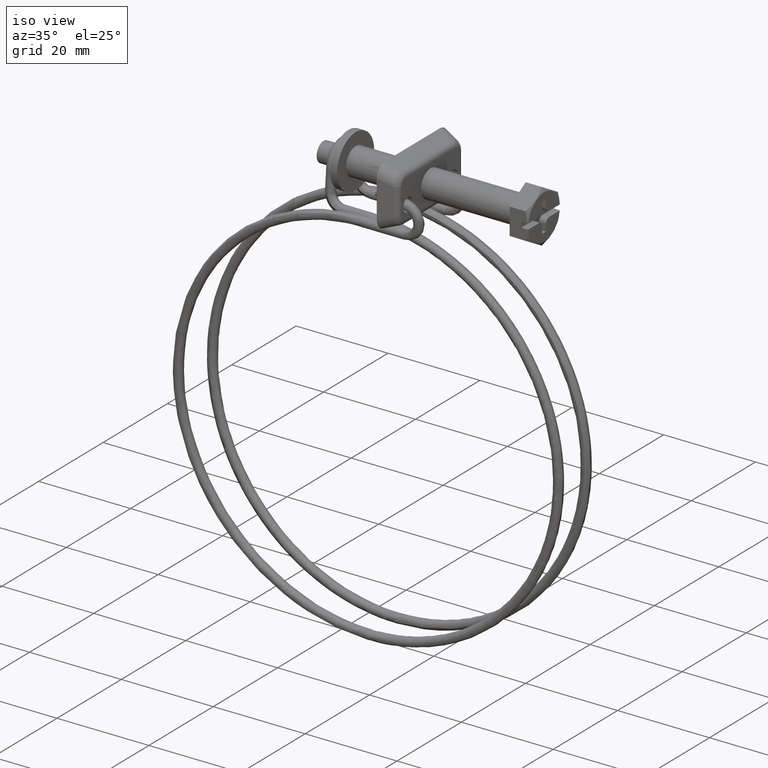
[diagram: clean part render]
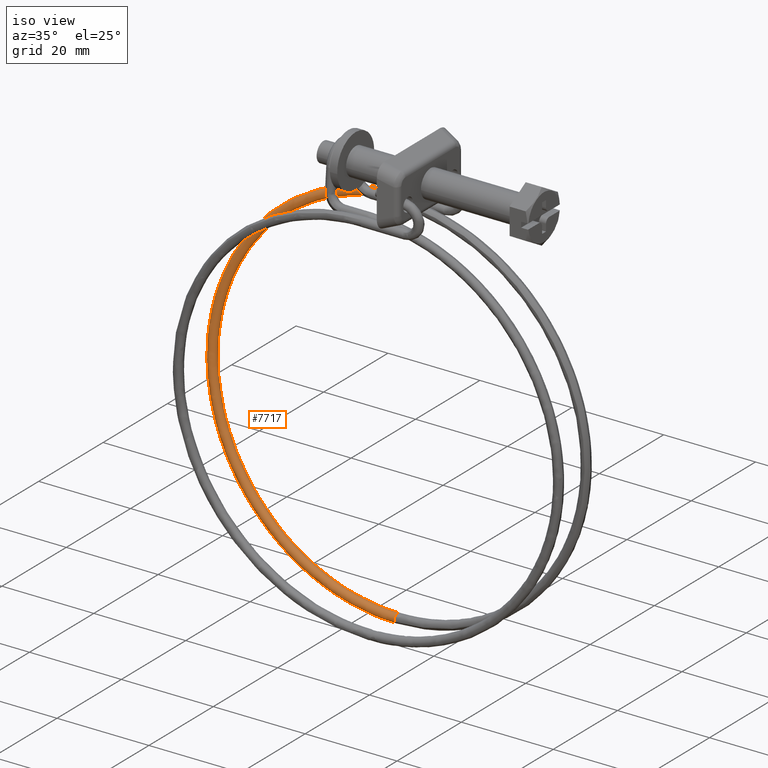
[diagram: same view with one face highlighted and labeled with its STEP entity id]
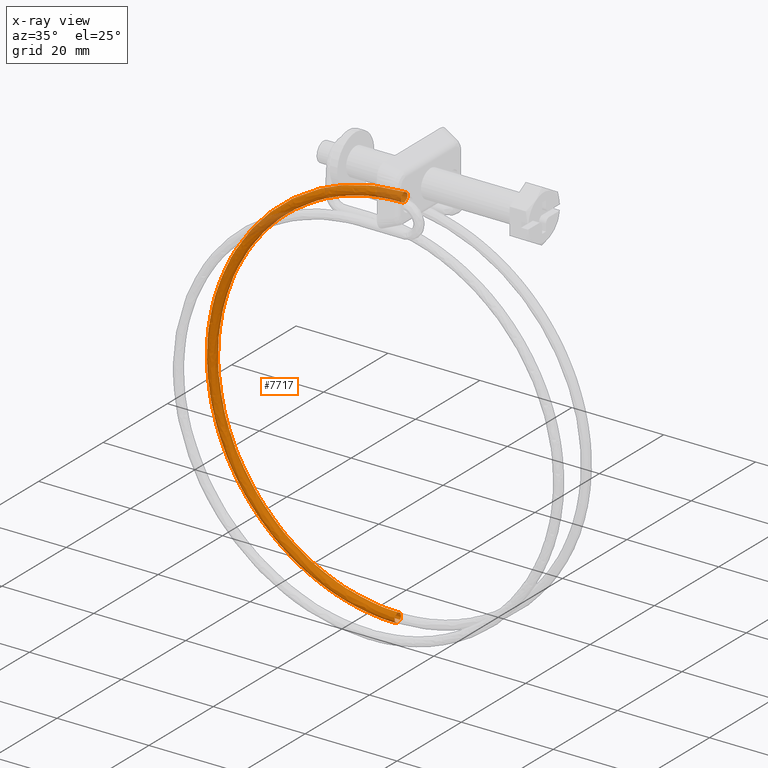
[diagram: x-ray of the same camera — body ghosted, the highlighted face saturated]
A machine part, iso view. The second image highlights one B-rep face of the part: STEP entity #7717.
The next image is the same camera in x-ray: the body ghosted, the highlighted face saturated — about 10% of this face is hidden behind the body in this view.
In plain terms, the highlighted face is a freeform B-spline surface patch.
Its self-contained STEP definition (entity closure, byte-faithful):
#5726=CARTESIAN_POINT('',(-30.850000000000911,6.004820437301616,-6.898214138594648));
#5727=VERTEX_POINT('',#5726);
#5728=CARTESIAN_POINT('',(-30.850000000000929,6.358996856596280,-6.851201973787996));
#5729=VERTEX_POINT('',#5728);
#5730=CARTESIAN_POINT('',(-30.850000000000911,6.004820437301616,-6.898214138594648));
#5731=CARTESIAN_POINT('',(-30.850000000000922,6.118867995594495,-6.861704642742452));
#5732=CARTESIAN_POINT('',(-30.850000000000929,6.239317306544906,-6.845181952244658));
#5733=CARTESIAN_POINT('',(-30.850000000000929,6.358996856596280,-6.851201973787996));
#5734=B_SPLINE_CURVE_WITH_KNOTS('',3,(#5730,#5731,#5732,#5733),.UNSPECIFIED.,.F.,.U.,(4,4),(0.942811831421303,1.0),.UNSPECIFIED.);
#5735=EDGE_CURVE('',#5727,#5729,#5734,.T.);
#5788=CARTESIAN_POINT('',(-30.849999999434960,5.310113702049540,-7.862072869064420));
#5789=VERTEX_POINT('',#5788);
#5795=CARTESIAN_POINT('',(-30.850000000000900,6.261006954303622,-8.848800026212214));
#5796=VERTEX_POINT('',#5795);
#5797=CARTESIAN_POINT('',(-30.850000000000900,6.261006954303622,-8.848800026212214));
#5798=CARTESIAN_POINT('',(-30.849999999922151,5.999516564921013,-8.835973256122980));
#5799=CARTESIAN_POINT('',(-30.849999999813381,5.744914629749102,-8.715581837668982));
#5800=CARTESIAN_POINT('',(-30.849999999605650,5.406925013788081,-8.342738291903570));
#5801=CARTESIAN_POINT('',(-30.849999999507698,5.313598870455792,-8.103321590939991));
#5802=CARTESIAN_POINT('',(-30.849999999434960,5.310113702049540,-7.862072869064420));
#5803=B_SPLINE_CURVE_WITH_KNOTS('',3,(#5797,#5798,#5799,#5800,#5801,#5802),.UNSPECIFIED.,.F.,.U.,(4,2,4),(0.500000000000000,0.625000000000000,0.740274319493434),.UNSPECIFIED.);
#5804=EDGE_CURVE('',#5796,#5789,#5803,.T.);
#5806=CARTESIAN_POINT('',(-30.850000000000929,7.071613916305710,-7.202001879863099));
#5807=VERTEX_POINT('',#5806);
#5808=CARTESIAN_POINT('',(-30.850000000000929,7.071613916305710,-7.202001879863099));
#5809=CARTESIAN_POINT('',(-30.850000000000911,7.234151736769861,-7.393563702140808));
#5810=CARTESIAN_POINT('',(-30.850000000000922,7.321114674079419,-7.647971026174180));
#5811=CARTESIAN_POINT('',(-30.850000000000911,7.295974083446659,-8.160480924743180));
#5812=CARTESIAN_POINT('',(-30.850000000000900,7.175582557090495,-8.415075380022401));
#5813=CARTESIAN_POINT('',(-30.850000000000911,6.787647058364607,-8.766731073330977));
#5814=CARTESIAN_POINT('',(-30.850000000000900,6.522491927900330,-8.861626874427570));
#5815=CARTESIAN_POINT('',(-30.850000000000900,6.261006954303626,-8.848800026212214));
#5816=B_SPLINE_CURVE_WITH_KNOTS('',3,(#5808,#5809,#5810,#5811,#5812,#5813,#5814,#5815),.UNSPECIFIED.,.F.,.U.,(4,2,2,4),(0.130000310572599,0.249999999999999,0.374999999999999,0.500000000000000),.UNSPECIFIED.);
#5817=EDGE_CURVE('',#5807,#5796,#5816,.T.);
#5849=CARTESIAN_POINT('',(-30.849999999434960,5.310113702049540,-7.862072869064420));
#5850=CARTESIAN_POINT('',(-30.849999999442741,5.309818581823587,-7.841712403682659));
#5851=CARTESIAN_POINT('',(-30.849999999450709,5.310162926879841,-7.821338748521689));
#5852=CARTESIAN_POINT('',(-30.849999999563479,5.323966057059225,-7.539417066603664));
#5853=CARTESIAN_POINT('',(-30.849999999695420,5.444332173754694,-7.284715254383526));
#5854=CARTESIAN_POINT('',(-30.849999999883622,5.743490145983325,-7.013348610112122));
#5855=CARTESIAN_POINT('',(-30.849999999946441,5.869654991837565,-6.941730163042696));
#5856=CARTESIAN_POINT('',(-30.850000000000911,6.004820437301616,-6.898214138594648));
#5857=B_SPLINE_CURVE_WITH_KNOTS('',3,(#5849,#5850,#5851,#5852,#5853,#5854,#5855,#5856),.UNSPECIFIED.,.F.,.U.,(4,2,2,4),(0.740274319493434,0.750000000000000,0.875000000000000,0.942811831421303),.UNSPECIFIED.);
#5858=EDGE_CURVE('',#5789,#5727,#5857,.T.);
#6677=CARTESIAN_POINT('',(-30.850012773898129,4.300002000002066,-90.850000999996155));
#6678=VERTEX_POINT('',#6677);
#6694=CARTESIAN_POINT('',(-30.849999999999049,5.028950649561814,-90.534537033441850));
#6695=VERTEX_POINT('',#6694);
#6705=CARTESIAN_POINT('',(-30.849999999999049,4.300002000002067,-88.850000999999992));
#6706=VERTEX_POINT('',#6705);
#6707=CARTESIAN_POINT('',(-30.849999999999049,5.028950649561814,-90.534537033441850));
#6708=CARTESIAN_POINT('',(-30.849999999999049,5.200678828488588,-90.351168804465871));
#6709=CARTESIAN_POINT('',(-30.849999999999049,5.300002000002070,-90.101327761825345));
#6710=CARTESIAN_POINT('',(-30.849999999999049,5.300002000002070,-89.588201612200891));
#6711=CARTESIAN_POINT('',(-30.849999999999049,5.192228903611880,-89.328014341236795));
#6712=CARTESIAN_POINT('',(-30.849999999999049,4.821988658765351,-88.957774096390210));
#6713=CARTESIAN_POINT('',(-30.849999999999049,4.561801387801220,-88.850000999999992));
#6714=CARTESIAN_POINT('',(-30.849999999999049,4.300002000002067,-88.850000999999992));
#6715=B_SPLINE_CURVE_WITH_KNOTS('',3,(#6707,#6708,#6709,#6710,#6711,#6712,#6713,#6714),.UNSPECIFIED.,.F.,.U.,(4,2,2,4),(0.130000310572678,0.250000000000000,0.375000000000000,0.500000000000000),.UNSPECIFIED.);
#6716=EDGE_CURVE('',#6695,#6706,#6715,.T.);
#6718=CARTESIAN_POINT('',(-30.849999999864480,3.364945210154583,-90.203131635906203));
#6719=VERTEX_POINT('',#6718);
#6720=CARTESIAN_POINT('',(-30.849999999999049,4.300002000002067,-88.850000999999992));
#6721=CARTESIAN_POINT('',(-30.849999999986871,4.038161661961732,-88.850016503426176));
#6722=CARTESIAN_POINT('',(-30.849999999967519,3.777909289248898,-88.957814246805668));
#6723=CARTESIAN_POINT('',(-30.849999999925359,3.407527296421545,-89.328108156277750));
#6724=CARTESIAN_POINT('',(-30.849999999902831,3.299678426659591,-89.588324114420274));
#6725=CARTESIAN_POINT('',(-30.849999999877092,3.299591888974549,-89.970530271639163));
#6726=CARTESIAN_POINT('',(-30.849999999870072,3.322352722698206,-90.090572399677228));
#6727=CARTESIAN_POINT('',(-30.849999999864480,3.364945210154583,-90.203131635906203));
#6728=B_SPLINE_CURVE_WITH_KNOTS('',3,(#6720,#6721,#6722,#6723,#6724,#6725,#6726,#6727),.UNSPECIFIED.,.F.,.U.,(4,2,2,4),(0.500000000000000,0.625000000000000,0.750000000000000,0.807474354682574),.UNSPECIFIED.);
#6729=EDGE_CURVE('',#6706,#6719,#6728,.T.);
#6784=CARTESIAN_POINT('',(-30.849999999864480,3.364945210154583,-90.203131635906203));
#6785=CARTESIAN_POINT('',(-30.850001308274908,3.415054867137733,-90.335349654655047));
#6786=CARTESIAN_POINT('',(-30.850002803495130,3.492539150086655,-90.457238662664196));
#6787=CARTESIAN_POINT('',(-30.850007261673230,3.777820058852113,-90.742301835921040));
#6788=CARTESIAN_POINT('',(-30.850010355027781,4.038116918534050,-90.850033442918615));
#6789=CARTESIAN_POINT('',(-30.850012773898129,4.300002000002066,-90.850000999996155));
#6790=B_SPLINE_CURVE_WITH_KNOTS('',3,(#6784,#6785,#6786,#6787,#6788,#6789),.UNSPECIFIED.,.F.,.U.,(4,2,4),(0.807474354682575,0.875000000000000,1.0),.UNSPECIFIED.);
#6791=EDGE_CURVE('',#6719,#6678,#6790,.T.);
#7377=CARTESIAN_POINT('',(-30.850000000000950,7.071613285309010,-7.202001136190101));
#7378=CARTESIAN_POINT('',(-30.850000000000950,7.234151286631649,-7.393562385268178));
#7379=CARTESIAN_POINT('',(-30.850000000000950,7.321114705951755,-7.647970376489860));
#7380=CARTESIAN_POINT('',(-30.850000000000950,7.295974083451569,-8.160480924739490));
#7381=CARTESIAN_POINT('',(-30.850000000000950,7.175582557096370,-8.415075380019149));
#7382=CARTESIAN_POINT('',(-30.850000000000950,6.787647058371790,-8.766731073329181));
#7383=CARTESIAN_POINT('',(-30.850000000000950,6.522491927907869,-8.861626874426781));
#7384=CARTESIAN_POINT('',(-30.850000000000950,5.999521980714371,-8.835973177998030));
#7385=CARTESIAN_POINT('',(-30.850000000000950,5.744927525434690,-8.715581651642809));
#7386=CARTESIAN_POINT('',(-30.850000000000950,5.393271832124660,-8.327646152918240));
#7387=CARTESIAN_POINT('',(-30.850000000000950,5.298376031027081,-8.062491022454319));
#7388=CARTESIAN_POINT('',(-30.850000000000950,5.324029727455830,-7.539521075260820));
#7389=CARTESIAN_POINT('',(-30.850000000000950,5.444421253811041,-7.284926619981150));
#7390=CARTESIAN_POINT('',(-30.850000000000950,5.832356752535610,-6.933270926671121));
#7391=CARTESIAN_POINT('',(-30.850000000000950,6.097511882999530,-6.838375125573530));
#7392=CARTESIAN_POINT('',(-30.850000000000950,6.358996856596286,-6.851201973787906));
#7393=CARTESIAN_POINT('',(-36.305318865713353,7.071801956482028,-7.202034668699312));
#7394=CARTESIAN_POINT('',(-36.280759766241658,7.234339540118801,-7.393595691949216));
#7395=CARTESIAN_POINT('',(-36.247729722232513,7.321302393485189,-7.648003380179147));
#7396=CARTESIAN_POINT('',(-36.180547038057462,7.296160609013390,-8.160513314088711));
#7397=CARTESIAN_POINT('',(-36.146827109476753,7.175768493765270,-8.415107462039599));
#7398=CARTESIAN_POINT('',(-36.099540505776652,6.787832162804280,-8.766762725463700));
#7399=CARTESIAN_POINT('',(-36.086265013652202,6.522676797336060,-8.861658406070150));
#7400=CARTESIAN_POINT('',(-36.087945416752099,5.999706879921960,-8.836004724843820));
#7401=CARTESIAN_POINT('',(-36.102890964337753,5.745112689080730,-8.715613334178409));
#7402=CARTESIAN_POINT('',(-36.152554016909697,5.393457869073910,-8.327678287076051));
#7403=CARTESIAN_POINT('',(-36.186965705122297,5.298562668259230,-8.062523470432069));
#7404=CARTESIAN_POINT('',(-36.255519464484387,5.324217548924910,-7.539554150366399));
#7405=CARTESIAN_POINT('',(-36.289239393035253,5.444609652173801,-7.284960004496850));
#7406=CARTESIAN_POINT('',(-36.336525996772700,5.832545953741991,-6.933304746242730));
#7407=CARTESIAN_POINT('',(-36.349801488881603,6.097701308324460,-6.838409067449040));
#7408=CARTESIAN_POINT('',(-36.348961287324812,6.359186267752410,-6.851235907937705));
#7409=CARTESIAN_POINT('',(-41.756597362526271,7.045027983379254,-8.286578513232945));
#7410=CARTESIAN_POINT('',(-41.707497660433937,7.207685674938065,-8.473256876935631));
#7411=CARTESIAN_POINT('',(-41.641462449132597,7.294810068150722,-8.721097773988895));
#7412=CARTESIAN_POINT('',(-41.507147679818907,7.269996864470141,-9.220250937255779));
#7413=CARTESIAN_POINT('',(-41.439733219027502,7.149769674200730,-9.468141134295658));
#7414=CARTESIAN_POINT('',(-41.345195625843502,6.762064629567949,-9.810395217999620));
#7415=CARTESIAN_POINT('',(-41.318654640136202,6.496974198006770,-9.902651561292020));
#7416=CARTESIAN_POINT('',(-41.322014180748802,5.973996061263240,-9.877331965713559));
#7417=CARTESIAN_POINT('',(-41.351894019576200,5.719328767970500,-9.759911940616199));
#7418=CARTESIAN_POINT('',(-41.451182720633852,5.367431038809690,-9.381850541442590));
#7419=CARTESIAN_POINT('',(-41.519980179656848,5.272367530294030,-9.123537206148251));
#7420=CARTESIAN_POINT('',(-41.657036066711662,5.297687125881801,-8.614197243631020));
#7421=CARTESIAN_POINT('',(-41.724450527540313,5.417914316153540,-8.366307046628400));
#7422=CARTESIAN_POINT('',(-41.818988120668401,5.805619360790970,-8.024052962924419));
#7423=CARTESIAN_POINT('',(-41.845529106394302,6.070709792352150,-7.931796619594779));
#7424=CARTESIAN_POINT('',(-41.843849336097328,6.332198860721585,-7.944456417384010));
#7425=CARTESIAN_POINT('',(-51.834657833174738,6.942698855846945,-12.461199687284800));
#7426=CARTESIAN_POINT('',(-51.740194108261562,7.105817157948212,-12.629086974020041));
#7427=CARTESIAN_POINT('',(-51.613147878563538,7.193561035860643,-12.851655360553410));
#7428=CARTESIAN_POINT('',(-51.354737483467808,7.170007856090960,-13.299404562928720));
#7429=CARTESIAN_POINT('',(-51.225037692908913,7.050413089436760,-13.521494393125259));
#7430=CARTESIAN_POINT('',(-51.043155261550012,6.663594913958450,-13.827567744266220));
#7431=CARTESIAN_POINT('',(-50.992092622335001,6.398753466755650,-13.909666516693900));
#7432=CARTESIAN_POINT('',(-50.998556097785603,5.875743813745460,-13.885632659772099));
#7433=CARTESIAN_POINT('',(-51.056042411454001,5.620796213879930,-13.779648026953501));
#7434=CARTESIAN_POINT('',(-51.247065577479098,5.267967044805459,-13.439585669406400));
#7435=CARTESIAN_POINT('',(-51.379426141130402,5.172258138593370,-13.207601991858599));
#7436=CARTESIAN_POINT('',(-51.643110217758803,5.196291995505860,-12.750715050659300));
#7437=CARTESIAN_POINT('',(-51.772810008280402,5.315886762157740,-12.528625220425541));
#7438=CARTESIAN_POINT('',(-51.954692439695201,5.702704937631390,-12.222551869284580));
#7439=CARTESIAN_POINT('',(-52.005755078891497,5.967546384834200,-12.140453096894120));
#7440=CARTESIAN_POINT('',(-52.002523341156902,6.229051211341620,-12.152470025355029));
#7441=CARTESIAN_POINT('',(-56.456585399208073,6.866995429185042,-15.549598225404299));
#7442=CARTESIAN_POINT('',(-56.341320301887457,7.030454462742127,-15.703585024638301));
#7443=CARTESIAN_POINT('',(-56.186297873547979,7.118656597487063,-15.907458356234340));
#7444=CARTESIAN_POINT('',(-55.870984250603797,7.096035506200931,-16.317182057654101));
#7445=CARTESIAN_POINT('',(-55.712723934325602,6.976908567793000,-16.520186357239151));
#7446=CARTESIAN_POINT('',(-55.490790105538302,6.590746443789440,-16.799495419098601));
#7447=CARTESIAN_POINT('',(-55.428483224460606,6.326089179964520,-16.874080242874399));
#7448=CARTESIAN_POINT('',(-55.436369988731393,5.803056213137150,-16.850997496626800));
#7449=CARTESIAN_POINT('',(-55.506515068650501,5.547901259653260,-16.753472066396149));
#7450=CARTESIAN_POINT('',(-55.739602466377796,5.194383068402150,-16.441519071791252));
#7451=CARTESIAN_POINT('',(-55.901109470921199,5.098196736511929,-16.229012461839549));
#7452=CARTESIAN_POINT('',(-56.222858065762203,5.121279482719940,-15.810927052227550));
#7453=CARTESIAN_POINT('',(-56.381118382040299,5.240406421130190,-15.607922752642500));
#7454=CARTESIAN_POINT('',(-56.603052210790402,5.626568545129100,-15.328613690820299));
#7455=CARTESIAN_POINT('',(-56.665359091905302,5.891225808958680,-15.254028866970000));
#7456=CARTESIAN_POINT('',(-56.661415709769912,6.152742292371200,-15.265570240093799));
#7457=CARTESIAN_POINT('',(-64.169706932447482,6.677924333817932,-23.262946489099551));
#7458=CARTESIAN_POINT('',(-64.019733912137127,6.842234159755088,-23.382224345082161));
#7459=CARTESIAN_POINT('',(-63.818032075610972,6.931580542873616,-23.539416896462800));
#7460=CARTESIAN_POINT('',(-63.407773137861888,6.911286838057980,-23.854192492014299));
#7461=CARTESIAN_POINT('',(-63.201858440510897,6.793328047460080,-24.009541009718550));
#7462=CARTESIAN_POINT('',(-62.913097250974097,6.408804056904301,-24.222020746345301));
#7463=CARTESIAN_POINT('',(-62.832028901848112,6.144606691345130,-24.277843550614151));
#7464=CARTESIAN_POINT('',(-62.842290480399697,5.621515510897161,-24.257135688594602));
#7465=CARTESIAN_POINT('',(-62.933557219047501,5.365842803988100,-24.180732537753698));
#7466=CARTESIAN_POINT('',(-63.236830472198399,5.010604152795780,-23.938967461756501));
#7467=CARTESIAN_POINT('',(-63.446969480803197,4.913225708707060,-23.775094285427802));
#7468=CARTESIAN_POINT('',(-63.865601049934902,4.933933570766151,-23.453894698130352));
#7469=CARTESIAN_POINT('',(-64.071515747285900,5.051892361361730,-23.298546180426150));
#7470=CARTESIAN_POINT('',(-64.360276936859904,5.436416351922160,-23.086066443762149));
#7471=CARTESIAN_POINT('',(-64.441345285948600,5.700613717476680,-23.030243639567750));
#7472=CARTESIAN_POINT('',(-64.436214496672804,5.962159307701830,-23.040597570577528));
#7473=CARTESIAN_POINT('',(-67.257870811315755,6.564631052096206,-27.884861520722911));
#7474=CARTESIAN_POINT('',(-67.094004646809807,6.729450598643297,-27.983344804258000));
#7475=CARTESIAN_POINT('',(-66.873617631611211,6.819482515630091,-28.112570302378600));
#7476=CARTESIAN_POINT('',(-66.425353280950901,6.800583177846730,-28.370461271795349));
#7477=CARTESIAN_POINT('',(-66.200363135448896,6.683324239566770,-28.497258600213250));
#7478=CARTESIAN_POINT('',(-65.884851795651699,6.299781675729149,-28.669700032240900));
#7479=CARTESIAN_POINT('',(-65.796273467359597,6.035859841118090,-28.714282270378799));
#7480=CARTESIAN_POINT('',(-65.807485654204200,5.512733784144930,-28.694997231810401));
#7481=CARTESIAN_POINT('',(-65.907207126505895,5.256750884521581,-28.631248709162250));
#7482=CARTESIAN_POINT('',(-66.238574893017002,4.900481483754490,-28.431534114064050));
#7483=CARTESIAN_POINT('',(-66.468180679900897,4.802388829977799,-28.296797850716651));
#7484=CARTESIAN_POINT('',(-66.925593282615495,4.821673868529930,-28.033643800254151));
#7485=CARTESIAN_POINT('',(-67.150583428154704,4.938932806809881,-27.906846471817651));
#7486=CARTESIAN_POINT('',(-67.466094768026409,5.322475370645170,-27.734405039808550));
#7487=CARTESIAN_POINT('',(-67.554673096318496,5.586397205249249,-27.689822801707951));
#7488=CARTESIAN_POINT('',(-67.549067002896209,5.847960233739325,-27.699465320973552));
#7489=CARTESIAN_POINT('',(-71.432071037498559,6.317605177178955,-37.962534153166203));
#7490=CARTESIAN_POINT('',(-71.249427466345963,6.483535955836153,-38.015683588924688));
#7491=CARTESIAN_POINT('',(-71.003786326068365,6.575062392000216,-38.083938651603532));
#7492=CARTESIAN_POINT('',(-70.504155410194215,6.559202887016050,-38.217816540569501));
#7493=CARTESIAN_POINT('',(-70.253383667347791,6.443469683310351,-38.282369969864547));
#7494=CARTESIAN_POINT('',(-69.901717915925389,6.062066709014920,-38.367524663339907));
#7495=CARTESIAN_POINT('',(-69.802989406265297,5.798745554138670,-38.387601559143263));
#7496=CARTESIAN_POINT('',(-69.815486396405603,5.275543463512930,-38.371418390806006));
#7497=CARTESIAN_POINT('',(-69.926634941895102,5.018884318722829,-38.335257979892148));
#7498=CARTESIAN_POINT('',(-70.295974106248195,4.660367800595889,-38.227216830248302));
#7499=CARTESIAN_POINT('',(-70.551890396374702,4.560718112007740,-38.156001390808846));
#7500=CARTESIAN_POINT('',(-71.061717861552395,4.576901280361250,-38.019391300064548));
#7501=CARTESIAN_POINT('',(-71.312489604361502,4.692634484066950,-37.954837870788097));
#7502=CARTESIAN_POINT('',(-71.664155355709397,5.074037458364710,-37.869683177294149));
#7503=CARTESIAN_POINT('',(-71.762883865369503,5.337358613247949,-37.849606281453553));
#7504=CARTESIAN_POINT('',(-71.756635370299350,5.598959658557325,-37.857697865640802));
#7505=CARTESIAN_POINT('',(-72.516468437387104,6.183969693214862,-43.414330082802287));
#7506=CARTESIAN_POINT('',(-72.328947678711643,6.350501549558695,-43.442957940961897));
#7507=CARTESIAN_POINT('',(-72.076747107455105,6.442836387618016,-43.478233423540182));
#7508=CARTESIAN_POINT('',(-71.563774393463092,6.428621161665360,-43.545031271342602));
#7509=CARTESIAN_POINT('',(-71.306306215599605,6.313713244608101,-43.575916290005154));
#7510=CARTESIAN_POINT('',(-70.945249825427396,5.933467597861750,-43.613856625178613));
#7511=CARTESIAN_POINT('',(-70.843884937970103,5.670471357262341,-43.620678311422949));
#7512=CARTESIAN_POINT('',(-70.856715639096905,5.147228139200060,-43.606172978834500));
#7513=CARTESIAN_POINT('',(-70.970832218369807,4.890203205949400,-43.584935281377099));
#7514=CARTESIAN_POINT('',(-71.350033960090286,4.530471197294441,-43.526481308128560));
#7515=CARTESIAN_POINT('',(-71.612784061646991,4.429979291426950,-43.489624982100963));
#7516=CARTESIAN_POINT('',(-72.136225606536811,4.444484624029375,-43.421463912933397));
#7517=CARTESIAN_POINT('',(-72.393693784400298,4.559392541091291,-43.390578894252208));
#7518=CARTESIAN_POINT('',(-72.754750174572507,4.939638187837640,-43.352638559078798));
#7519=CARTESIAN_POINT('',(-72.856115062029801,5.202634428439381,-43.345816872815803));
#7520=CARTESIAN_POINT('',(-72.849699711466400,5.464256037469355,-43.353069539119353));
#7521=CARTESIAN_POINT('',(-72.516468437387104,5.916593645016190,-54.322208798694582));
#7522=CARTESIAN_POINT('',(-72.328947678711643,6.084328121477913,-54.301774542007500));
#7523=CARTESIAN_POINT('',(-72.076747107455105,6.178280388371900,-54.271065365238883));
#7524=CARTESIAN_POINT('',(-71.563774393463092,6.167354991824380,-54.203651265599703));
#7525=CARTESIAN_POINT('',(-71.306306215599605,6.054098286136230,-54.167173431252699));
#7526=CARTESIAN_POINT('',(-70.945249825427396,5.676168189311480,-54.110648544542798));
#7527=CARTESIAN_POINT('',(-70.843884937970103,5.413822028482841,-54.090949563005800));
#7528=CARTESIAN_POINT('',(-70.856715639096905,4.890496523753310,-54.079801199165502));
#7529=CARTESIAN_POINT('',(-70.970832218369807,4.632739730760170,-54.088420466657901));
#7530=CARTESIAN_POINT('',(-71.350033960090286,4.270575801258575,-54.129179186028402));
#7531=CARTESIAN_POINT('',(-71.612784061646991,4.168398809638284,-54.161067652556213));
#7532=CARTESIAN_POINT('',(-72.136225606536811,4.179547173464609,-54.229857550128600));
#7533=CARTESIAN_POINT('',(-72.393693784400298,4.292803879148100,-54.266335384494212));
#7534=CARTESIAN_POINT('',(-72.754750174572507,4.670733975972850,-54.322860271204100));
#7535=CARTESIAN_POINT('',(-72.856115062029801,4.933080136799160,-54.342559252759699));
#7536=CARTESIAN_POINT('',(-72.849699711466400,5.194742889165090,-54.348133434670558));
#7537=CARTESIAN_POINT('',(-71.432071037457206,5.782958161061376,-59.774004728223943));
#7538=CARTESIAN_POINT('',(-71.249427466285354,5.951293715210081,-59.729048893945070));
#7539=CARTESIAN_POINT('',(-71.003786325973138,6.046054383990868,-59.665360137059999));
#7540=CARTESIAN_POINT('',(-70.504155410098903,6.036773266481680,-59.530865996312599));
#7541=CARTESIAN_POINT('',(-70.253383667252393,5.924341847437330,-59.460719751314798));
#7542=CARTESIAN_POINT('',(-69.901717915867096,5.547569078163971,-59.356980506284600));
#7543=CARTESIAN_POINT('',(-69.802989406206891,5.285547831614500,-59.324026315188803));
#7544=CARTESIAN_POINT('',(-69.815486396347183,4.762181199446101,-59.314555787115900));
#7545=CARTESIAN_POINT('',(-69.926634941836710,4.504058617994721,-59.338097768027403));
#7546=CARTESIAN_POINT('',(-70.295974106152812,4.140679197962795,-59.428443663867299));
#7547=CARTESIAN_POINT('',(-70.551890396279404,4.037659989063171,-59.494691243769402));
#7548=CARTESIAN_POINT('',(-71.061717861457296,4.047130517136095,-59.631930162899401));
#7549=CARTESIAN_POINT('',(-71.312489604303792,4.159561936180454,-59.702076407859998));
#7550=CARTESIAN_POINT('',(-71.664155355689104,4.536334705453810,-59.805815652890097));
#7551=CARTESIAN_POINT('',(-71.762883865349195,4.798355952000950,-59.838769843985887));
#7552=CARTESIAN_POINT('',(-71.756635370279042,5.060039268085150,-59.843505108041001));
#7553=CARTESIAN_POINT('',(-67.257870811355673,5.535932286125568,-69.851677360880288));
#7554=CARTESIAN_POINT('',(-67.094004646869024,5.705379072383697,-69.761387678810607));
#7555=CARTESIAN_POINT('',(-66.873617631704803,5.801634260358655,-69.636728486515480));
#7556=CARTESIAN_POINT('',(-66.425353281044792,5.795392975635010,-69.378221265206804));
#7557=CARTESIAN_POINT('',(-66.200363135542915,5.684487291174230,-69.245831121122805));
#7558=CARTESIAN_POINT('',(-65.884851795708585,5.309854111438430,-69.054805137576807));
#7559=CARTESIAN_POINT('',(-65.796273467416498,5.048433544619110,-68.997345604146290));
#7560=CARTESIAN_POINT('',(-65.807485654261100,4.524990878802800,-68.990976946267295));
#7561=CARTESIAN_POINT('',(-65.907207126562795,4.266192052180005,-69.042107038987808));
#7562=CARTESIAN_POINT('',(-66.238574893111007,3.900565514792855,-69.224126380133896));
#7563=CARTESIAN_POINT('',(-66.468180679994802,3.795989271081775,-69.353894784019005));
#7564=CARTESIAN_POINT('',(-66.925593282709102,3.802357928960710,-69.617677662905393));
#7565=CARTESIAN_POINT('',(-67.150583428211007,3.913263613421490,-69.750067807026696));
#7566=CARTESIAN_POINT('',(-67.466094768045309,4.287896793157290,-69.941093790572609));
#7567=CARTESIAN_POINT('',(-67.554673096337396,4.549317359978940,-69.998553324003211));
#7568=CARTESIAN_POINT('',(-67.549067002915109,4.811038692887095,-70.001737652924049));
#7569=CARTESIAN_POINT('',(-64.169706932486690,5.422639004422679,-74.473592392392064));
#7570=CARTESIAN_POINT('',(-64.019733912168178,5.592595511290059,-74.362508137884532));
#7571=CARTESIAN_POINT('',(-63.818032075744441,5.689536233124795,-74.209881892346900));
#7572=CARTESIAN_POINT('',(-63.407773137959303,5.684689315437971,-73.894490044921795));
#7573=CARTESIAN_POINT('',(-63.201858440571208,5.574483483292820,-73.733548711570208));
#7574=CARTESIAN_POINT('',(-62.913097250997502,5.200831730279830,-73.502484423406599));
#7575=CARTESIAN_POINT('',(-62.832028901908807,4.939686694401640,-73.433784323807799));
#7576=CARTESIAN_POINT('',(-62.842290480497709,4.416209152060130,-73.428838489435904));
#7577=CARTESIAN_POINT('',(-62.933557219070899,4.157100132730035,-73.492623210237298));
#7578=CARTESIAN_POINT('',(-63.236830472221513,3.790442845762300,-73.716693032394005));
#7579=CARTESIAN_POINT('',(-63.446969480863302,3.685152392365560,-73.875598349260400));
#7580=CARTESIAN_POINT('',(-63.865601050031792,3.690098226735215,-74.197426765000301));
#7581=CARTESIAN_POINT('',(-64.071515747345401,3.800304058885025,-74.358368098277396));
#7582=CARTESIAN_POINT('',(-64.360276936919206,4.173955811896851,-74.589432386440990));
#7583=CARTESIAN_POINT('',(-64.441345286082296,4.435100847770385,-74.658132486039790));
#7584=CARTESIAN_POINT('',(-64.436214496787912,4.696839618941137,-74.660605403225802));
#7585=CARTESIAN_POINT('',(-56.456585399166293,5.233567909036479,-82.186940656096610));
#7586=CARTESIAN_POINT('',(-56.341320301853820,5.404375208285981,-82.041147458332489));
#7587=CARTESIAN_POINT('',(-56.186297873411917,5.502460178494388,-81.841840432512726));
#7588=CARTESIAN_POINT('',(-55.870984250503803,5.499940647282610,-81.431500479293092));
#7589=CARTESIAN_POINT('',(-55.712723934262691,5.390902962942811,-81.222903363986589));
#7590=CARTESIAN_POINT('',(-55.490790105512403,5.018889343372931,-80.925009750590903));
#7591=CARTESIAN_POINT('',(-55.428483224397297,4.758204205779121,-80.837547631559801));
#7592=CARTESIAN_POINT('',(-55.436369988630901,4.234668449812349,-80.834976681341402));
#7593=CARTESIAN_POINT('',(-55.506515068624601,3.975041677047780,-80.919883681681497));
#7594=CARTESIAN_POINT('',(-55.739602466352103,3.606663930145835,-81.214141422370801));
#7595=CARTESIAN_POINT('',(-55.901109470858501,3.500181364545955,-81.421680172785315));
#7596=CARTESIAN_POINT('',(-56.222858065662699,3.502752314766705,-81.840394410764404));
#7597=CARTESIAN_POINT('',(-56.381118381978197,3.611789999101850,-82.048991526145400));
#7598=CARTESIAN_POINT('',(-56.603052210728592,3.983803618672895,-82.346885139541115));
#7599=CARTESIAN_POINT('',(-56.665359091769098,4.244488756271365,-82.434347258572203));
#7600=CARTESIAN_POINT('',(-56.661415709652303,4.506256634254748,-82.435632733681402));
#7601=CARTESIAN_POINT('',(-51.834657833085018,5.157864482388190,-85.275339194193464));
#7602=CARTESIAN_POINT('',(-51.740194108171643,5.329012513093518,-85.115645508933596));
#7603=CARTESIAN_POINT('',(-51.613147878473420,5.427555740134419,-84.897643428244962));
#7604=CARTESIAN_POINT('',(-51.354737483377100,5.425968297406200,-84.449277974069688));
#7605=CARTESIAN_POINT('',(-51.225037692780703,5.317398441312681,-84.221595328114290));
#7606=CARTESIAN_POINT('',(-51.043155261477303,4.946040873212900,-83.896937425474206));
#7607=CARTESIAN_POINT('',(-50.992092622243597,4.685539918989980,-83.801961357753996));
#7608=CARTESIAN_POINT('',(-50.998556097712800,4.161980849215350,-83.800341518246995));
#7609=CARTESIAN_POINT('',(-51.056042411400000,3.902146722828920,-83.893707721175105));
#7610=CARTESIAN_POINT('',(-51.247065577388199,3.533079953747995,-84.216074824769507));
#7611=CARTESIAN_POINT('',(-51.379426141002597,3.426119962473480,-84.443090642891903));
#7612=CARTESIAN_POINT('',(-51.643110217668699,3.427739801990910,-84.900606412458501));
#7613=CARTESIAN_POINT('',(-51.772810008227800,3.536309658083270,-85.128289058339405));
#7614=CARTESIAN_POINT('',(-51.954692439568497,3.907667226180715,-85.452946961053911));
#7615=CARTESIAN_POINT('',(-52.005755078764899,4.168168180409460,-85.547923028736903));
#7616=CARTESIAN_POINT('',(-52.002523341048949,4.429947715296775,-85.548732948490397));
#7617=CARTESIAN_POINT('',(-41.756597362612602,5.055535354847769,-89.449960368280031));
#7618=CARTESIAN_POINT('',(-41.707497660520460,5.227143996093493,-89.271475606047034));
#7619=CARTESIAN_POINT('',(-41.641462449219368,5.326306707834098,-89.028201014768214));
#7620=CARTESIAN_POINT('',(-41.507147679906147,5.325979289012221,-88.528431599627908));
#7621=CARTESIAN_POINT('',(-41.439733219152302,5.218041856538560,-88.274948586977999));
#7622=CARTESIAN_POINT('',(-41.345195625912801,4.847571157607230,-87.914109951700098));
#7623=CARTESIAN_POINT('',(-41.318654640224253,4.587319187738030,-87.808976313115096));
#7624=CARTESIAN_POINT('',(-41.322014180818201,4.063728601682765,-87.808642212264800));
#7625=CARTESIAN_POINT('',(-41.351894019626847,3.803614168739845,-87.913443807322707));
#7626=CARTESIAN_POINT('',(-41.451182720721398,3.433615959742935,-88.273809952692901));
#7627=CARTESIAN_POINT('',(-41.519980179781300,3.326010570769655,-88.527155428413110));
#7628=CARTESIAN_POINT('',(-41.657036066798362,3.326344671609465,-89.037124219372600));
#7629=CARTESIAN_POINT('',(-41.724450527589497,3.434282104084285,-89.290607232097003));
#7630=CARTESIAN_POINT('',(-41.818988120791701,3.804752803017945,-89.651445867300396));
#7631=CARTESIAN_POINT('',(-41.845529106517553,4.065004772881330,-89.756579505922716));
#7632=CARTESIAN_POINT('',(-41.843849336201949,4.326800065908961,-89.756746556347849));
#7633=CARTESIAN_POINT('',(-36.305318898980282,5.028950803613644,-90.534537759550972));
#7634=CARTESIAN_POINT('',(-36.280759799310729,5.200679131384955,-90.351170115324550));
#7635=CARTESIAN_POINT('',(-36.247729755033603,5.300002812058038,-90.101328431799516));
#7636=CARTESIAN_POINT('',(-36.180547070311697,5.300002802017310,-89.588201631713105));
#7637=CARTESIAN_POINT('',(-36.146827141427600,5.192229700615290,-89.328014358701495));
#7638=CARTESIAN_POINT('',(-36.099540537380051,4.821989448787940,-88.957774106557395));
#7639=CARTESIAN_POINT('',(-36.086265045129650,4.561802175900831,-88.850001005102598));
#7640=CARTESIAN_POINT('',(-36.087945448247503,4.038203400680425,-88.850000994859400));
#7641=CARTESIAN_POINT('',(-36.102890995963250,3.778016132012885,-88.957774086145307));
#7642=CARTESIAN_POINT('',(-36.152554048902552,3.407775894677530,-89.328014323762602));
#7643=CARTESIAN_POINT('',(-36.186965737364552,3.300002803457140,-89.588201592602502));
#7644=CARTESIAN_POINT('',(-36.255519497312797,3.300002813703900,-90.111800368200804));
#7645=CARTESIAN_POINT('',(-36.289239426169047,3.407775915107035,-90.371987641289294));
#7646=CARTESIAN_POINT('',(-36.336526030244499,3.778016166933155,-90.742227893364998));
#7647=CARTESIAN_POINT('',(-36.349801522466997,4.038203439816755,-90.850000994859400));
#7648=CARTESIAN_POINT('',(-36.348961320922022,4.300002827426983,-90.850000999981063));
#7649=CARTESIAN_POINT('',(-30.849999999999049,5.028949982885945,-90.534537745304775));
#7650=CARTESIAN_POINT('',(-30.849999999999049,5.200678314368870,-90.351170097699224));
#7651=CARTESIAN_POINT('',(-30.849999999999049,5.300002000002070,-90.101328412287245));
#7652=CARTESIAN_POINT('',(-30.849999999999049,5.300002000002070,-89.588201612200891));
#7653=CARTESIAN_POINT('',(-30.849999999999049,5.192228903611880,-89.328014341236795));
#7654=CARTESIAN_POINT('',(-30.849999999999049,4.821988658765351,-88.957774096390210));
#7655=CARTESIAN_POINT('',(-30.849999999999049,4.561801387801220,-88.850000999999992));
#7656=CARTESIAN_POINT('',(-30.849999999999049,4.038202612202914,-88.850000999999992));
#7657=CARTESIAN_POINT('',(-30.849999999999049,3.778015341238785,-88.957774096390210));
#7658=CARTESIAN_POINT('',(-30.849999999999049,3.407775096392256,-89.328014341236795));
#7659=CARTESIAN_POINT('',(-30.849999999999049,3.300002000002065,-89.588201612200891));
#7660=CARTESIAN_POINT('',(-30.849999999999049,3.300002000002065,-90.111800387799207));
#7661=CARTESIAN_POINT('',(-30.849999999999049,3.407775096392256,-90.371987658763288));
#7662=CARTESIAN_POINT('',(-30.849999999999049,3.778015341238785,-90.742227903609802));
#7663=CARTESIAN_POINT('',(-30.849999999999049,4.038202612202914,-90.850001000000006));
#7664=CARTESIAN_POINT('',(-30.849999999999049,4.300002000002067,-90.850001000000006));
#7665=B_SPLINE_SURFACE_WITH_KNOTS('',3,3,((#7377,#7393,#7409,#7425,#7441,#7457,#7473,#7489,#7505,#7521,#7537,#7553,#7569,#7585,#7601,#7617,#7633,#7649),(#7378,#7394,#7410,#7426,#7442,#7458,#7474,#7490,#7506,#7522,#7538,#7554,#7570,#7586,#7602,#7618,#7634,#7650),(#7379,#7395,#7411,#7427,#7443,#7459,#7475,#7491,#7507,#7523,#7539,#7555,#7571,#7587,#7603,#7619,#7635,#7651),(#7380,#7396,#7412,#7428,#7444,#7460,#7476,#7492,#7508,#7524,#7540,#7556,#7572,#7588,#7604,#7620,#7636,#7652),(#7381,#7397,#7413,#7429,#7445,#7461,#7477,#7493,#7509,#7525,#7541,#7557,#7573,#7589,#7605,#7621,#7637,#7653),(#7382,#7398,#7414,#7430,#7446,#7462,#7478,#7494,#7510,#7526,#7542,#7558,#7574,#7590,#7606,#7622,#7638,#7654),(#7383,#7399,#7415,#7431,#7447,#7463,#7479,#7495,#7511,#7527,#7543,#7559,#7575,#7591,#7607,#7623,#7639,#7655),(#7384,#7400,#7416,#7432,#7448,#7464,#7480,#7496,#7512,#7528,#7544,#7560,#7576,#7592,#7608,#7624,#7640,#7656),(#7385,#7401,#7417,#7433,#7449,#7465,#7481,#7497,#7513,#7529,#7545,#7561,#7577,#7593,#7609,#7625,#7641,#7657),(#7386,#7402,#7418,#7434,#7450,#7466,#7482,#7498,#7514,#7530,#7546,#7562,#7578,#7594,#7610,#7626,#7642,#7658),(#7387,#7403,#7419,#7435,#7451,#7467,#7483,#7499,#7515,#7531,#7547,#7563,#7579,#7595,#7611,#7627,#7643,#7659),(#7388,#7404,#7420,#7436,#7452,#7468,#7484,#7500,#7516,#7532,#7548,#7564,#7580,#7596,#7612,#7628,#7644,#7660),(#7389,#7405,#7421,#7437,#7453,#7469,#7485,#7501,#7517,#7533,#7549,#7565,#7581,#7597,#7613,#7629,#7645,#7661),(#7390,#7406,#7422,#7438,#7454,#7470,#7486,#7502,#7518,#7534,#7550,#7566,#7582,#7598,#7614,#7630,#7646,#7662),(#7391,#7407,#7423,#7439,#7455,#7471,#7487,#7503,#7519,#7535,#7551,#7567,#7583,#7599,#7615,#7631,#7647,#7663),(#7392,#7408,#7424,#7440,#7456,#7472,#7488,#7504,#7520,#7536,#7552,#7568,#7584,#7600,#7616,#7632,#7648,#7664)),.UNSPECIFIED.,.F.,.F.,.U.,(4,2,2,2,2,2,2,4),(4,2,2,2,2,2,2,2,4),(0.0,0.753982236861567,1.539380400259033,2.324778563656500,3.110176727053966,3.895574890451432,4.680973053848898,5.466371217246364),(0.0,16.496999478057969,32.993998956115952,49.490998434173989,65.987997912231975,82.484997390289891,98.981996868347892,115.478996346406010,131.975995824464010),.UNSPECIFIED.);
#7666=ORIENTED_EDGE('',*,*,#6716,.F.);
#7667=CARTESIAN_POINT('',(-30.850000000000929,7.071613916305710,-7.202001879863099));
#7668=CARTESIAN_POINT('',(-36.305318865713353,7.071801956482028,-7.202034668699311));
#7669=CARTESIAN_POINT('',(-41.756597362526271,7.045027983379254,-8.286578513232945));
#7670=CARTESIAN_POINT('',(-51.834657833174738,6.942698855846945,-12.461199687284800));
#7671=CARTESIAN_POINT('',(-56.456585399208073,6.866995429185042,-15.549598225404299));
#7672=CARTESIAN_POINT('',(-64.169706932447482,6.677924333817932,-23.262946489099541));
#7673=CARTESIAN_POINT('',(-67.257870811315755,6.564631052096207,-27.884861520722911));
#7674=CARTESIAN_POINT('',(-71.432071037498545,6.317605177178955,-37.962534153166203));
#7675=CARTESIAN_POINT('',(-72.516468437387118,6.183969693214862,-43.414330082802287));
#7676=CARTESIAN_POINT('',(-72.516468437387118,5.916593645016189,-54.322208798694589));
#7677=CARTESIAN_POINT('',(-71.432071037457192,5.782958161061376,-59.774004728223943));
#7678=CARTESIAN_POINT('',(-67.257870811355673,5.535932286125568,-69.851677360880302));
#7679=CARTESIAN_POINT('',(-64.169706932486690,5.422639004422679,-74.473592392392064));
#7680=CARTESIAN_POINT('',(-56.456585399166293,5.233567909036479,-82.186940656096596));
#7681=CARTESIAN_POINT('',(-51.834657833085011,5.157864482388190,-85.275339194193464));
#7682=CARTESIAN_POINT('',(-41.756597362612602,5.055535354847769,-89.449960368280031));
#7683=CARTESIAN_POINT('',(-36.305318898980282,5.028950803613644,-90.534537759550958));
#7684=CARTESIAN_POINT('',(-30.849999999999049,5.028950649561814,-90.534537033441850));
#7685=B_SPLINE_CURVE_WITH_KNOTS('',3,(#7667,#7668,#7669,#7670,#7671,#7672,#7673,#7674,#7675,#7676,#7677,#7678,#7679,#7680,#7681,#7682,#7683,#7684),.UNSPECIFIED.,.F.,.U.,(4,2,2,2,2,2,2,2,4),(0.040414595557399,0.067013233716989,0.093611871876579,0.120210510036170,0.146809148195760,0.173407786355351,0.200006424514941,0.226605062674532,0.253203700834122),.UNSPECIFIED.);
#7686=EDGE_CURVE('',#5807,#6695,#7685,.T.);
#7687=ORIENTED_EDGE('',*,*,#7686,.F.);
#7688=ORIENTED_EDGE('',*,*,#5817,.T.);
#7689=ORIENTED_EDGE('',*,*,#5804,.T.);
#7690=ORIENTED_EDGE('',*,*,#5858,.T.);
#7691=ORIENTED_EDGE('',*,*,#5735,.T.);
#7692=CARTESIAN_POINT('',(-30.850000000000929,6.358996856596280,-6.851201973787996));
#7693=CARTESIAN_POINT('',(-36.348961287329239,6.359186267752405,-6.851235907937794));
#7694=CARTESIAN_POINT('',(-41.843849502351141,6.332198860721579,-7.944456417384048));
#7695=CARTESIAN_POINT('',(-52.002524147333439,6.229051211341615,-12.152470025354869));
#7696=CARTESIAN_POINT('',(-56.661416989363083,6.152742292371196,-15.265570240093490));
#7697=CARTESIAN_POINT('',(-64.436216958633054,5.962159307701826,-23.040597570576850));
#7698=CARTESIAN_POINT('',(-67.549070173341661,5.847960233739321,-27.699465320972660));
#7699=CARTESIAN_POINT('',(-71.756640085531629,5.598959658557321,-37.857697865639437));
#7700=CARTESIAN_POINT('',(-72.849705262393044,5.464256037469351,-43.353069539117733));
#7701=CARTESIAN_POINT('',(-72.849706934438814,5.194742889165087,-54.348133434668419));
#7702=CARTESIAN_POINT('',(-71.756643428945821,5.060039268085148,-59.843505108038613));
#7703=CARTESIAN_POINT('',(-67.549076606368700,4.811038692887093,-70.001737652921179));
#7704=CARTESIAN_POINT('',(-64.436224808726720,4.696839618941135,-74.660605403222704));
#7705=CARTESIAN_POINT('',(-56.661427203958183,4.506256634254746,-82.435632733677949));
#7706=CARTESIAN_POINT('',(-52.002535308771463,4.429947715296774,-85.548732948486801));
#7707=CARTESIAN_POINT('',(-41.843861943847202,4.326800065908960,-89.756746556344055));
#7708=CARTESIAN_POINT('',(-36.348974094821102,4.300002827426982,-90.850000999977212));
#7709=CARTESIAN_POINT('',(-30.850012773898129,4.300002000002066,-90.850000999996155));
#7710=B_SPLINE_CURVE_WITH_KNOTS('',3,(#7692,#7693,#7694,#7695,#7696,#7697,#7698,#7699,#7700,#7701,#7702,#7703,#7704,#7705,#7706,#7707,#7708,#7709),.UNSPECIFIED.,.F.,.U.,(4,2,2,2,2,2,2,2,4),(0.040414595557399,0.067013233716989,0.093611871876579,0.120210510036170,0.146809148195760,0.173407786355351,0.200006424514941,0.226605062674532,0.253203700834122),.UNSPECIFIED.);
#7711=EDGE_CURVE('',#5729,#6678,#7710,.T.);
#7712=ORIENTED_EDGE('',*,*,#7711,.T.);
#7713=ORIENTED_EDGE('',*,*,#6791,.F.);
#7714=ORIENTED_EDGE('',*,*,#6729,.F.);
#7715=EDGE_LOOP('',(#7666,#7687,#7688,#7689,#7690,#7691,#7712,#7713,#7714));
#7716=FACE_OUTER_BOUND('',#7715,.T.);
#7717=ADVANCED_FACE('',(#7716),#7665,.T.);